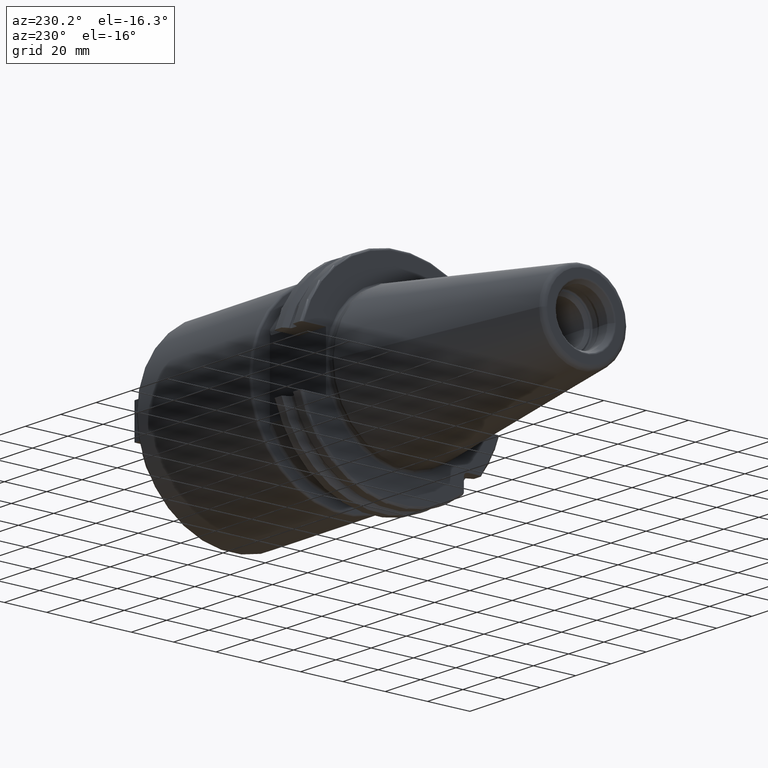
[diagram: clean part render]
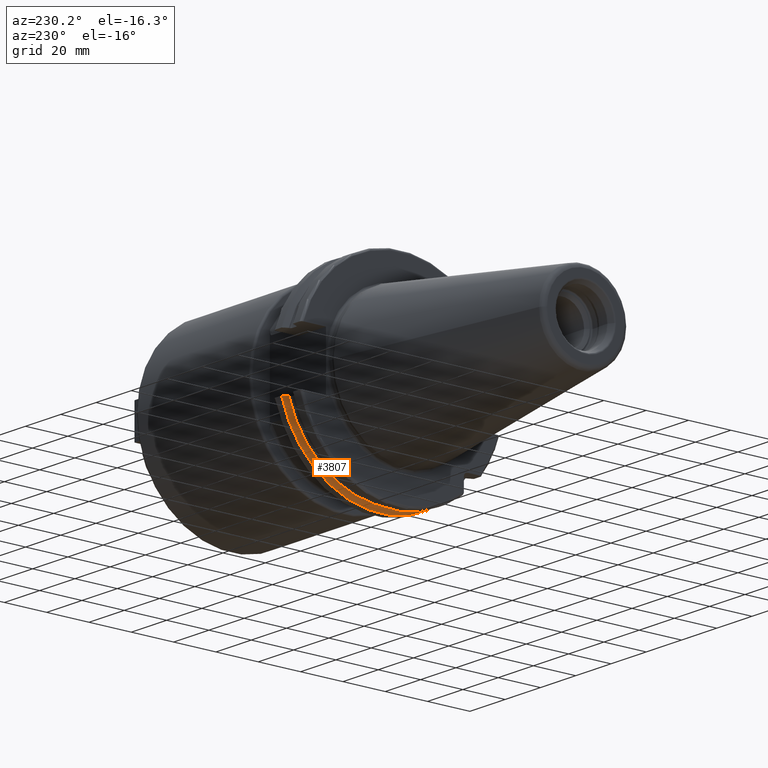
[diagram: same view with one face highlighted and labeled with its STEP entity id]
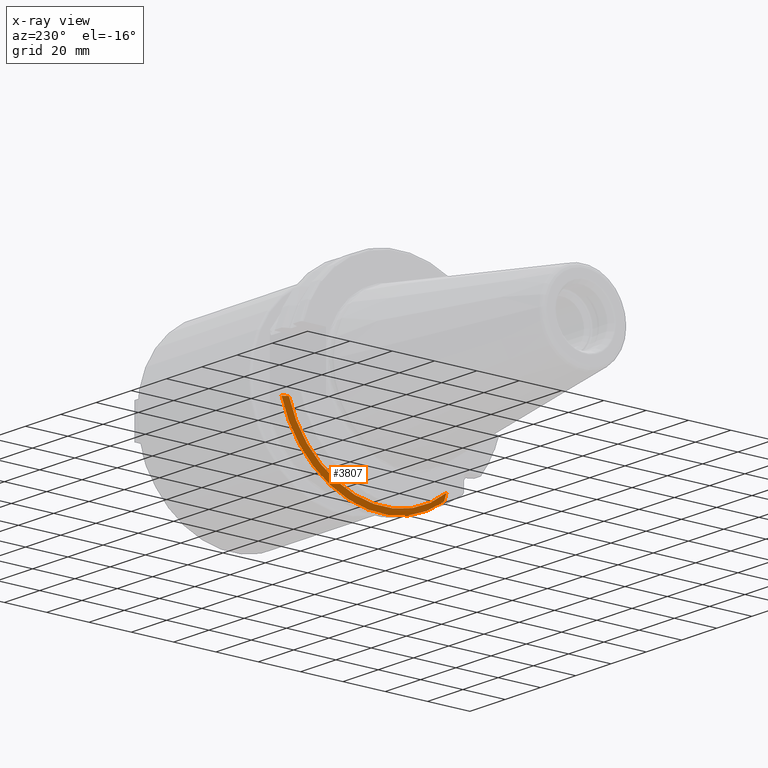
[diagram: x-ray of the same camera — body ghosted, the highlighted face saturated]
A machine part, auxiliary view. The second image highlights one B-rep face of the part: STEP entity #3807.
The next image is the same camera in x-ray: the body ghosted, the highlighted face saturated — about 0% of this face is hidden behind the body in this view.
In plain terms, the highlighted conical surface has half-angle 60 deg.
Its self-contained STEP definition (entity closure, byte-faithful):
#968=CARTESIAN_POINT('',(1.441537838583E1,0.E0,0.E0));
#969=DIRECTION('',(1.E0,0.E0,0.E0));
#970=DIRECTION('',(0.E0,-6.124647345473E-1,-7.904979120376E-1));
#971=AXIS2_PLACEMENT_3D('',#968,#969,#970);
#1495=CARTESIAN_POINT('',(1.30875E1,4.460981716077E1,-1.29E1));
#1496=CARTESIAN_POINT('',(1.323171622645E1,4.486984125009E1,-1.29E1));
#1497=CARTESIAN_POINT('',(1.352236645045E1,4.539353719098E1,-1.29E1));
#1498=CARTESIAN_POINT('',(1.396495664446E1,4.618996220278E1,-1.29E1));
#1499=CARTESIAN_POINT('',(1.426449561388E1,4.672829507383E1,-1.29E1));
#1500=CARTESIAN_POINT('',(1.441537838583E1,4.699929686974E1,-1.29E1));
#1502=CARTESIAN_POINT('',(1.30875E1,0.E0,0.E0));
#1503=DIRECTION('',(-1.E0,0.E0,0.E0));
#1504=DIRECTION('',(0.E0,9.606411165078E-1,-2.777924499957E-1));
#1505=AXIS2_PLACEMENT_3D('',#1502,#1503,#1504);
#1507=CARTESIAN_POINT('',(1.30875E1,-2.985E1,-3.557278857662E1));
#1508=CARTESIAN_POINT('',(1.322720354061E1,-2.985E1,-3.588866659244E1));
#1509=CARTESIAN_POINT('',(1.351179500938E1,-2.985E1,-3.652866450573E1));
#1510=CARTESIAN_POINT('',(1.395393296765E1,-2.985E1,-3.751242476101E1));
#1511=CARTESIAN_POINT('',(1.425975326859E1,-2.985E1,-3.818590359837E1));
#1512=CARTESIAN_POINT('',(1.441537838583E1,-2.985E1,-3.852689198793E1));
#1853=CARTESIAN_POINT('',(1.30875E1,4.460981716077E1,-1.29E1));
#1855=VERTEX_POINT('',#1853);
#1873=VERTEX_POINT('',#1500);
#1928=CARTESIAN_POINT('',(1.30875E1,-2.985E1,-3.557278857662E1));
#1929=VERTEX_POINT('',#1928);
#1957=VERTEX_POINT('',#1512);
#3796=CARTESIAN_POINT('',(1.375143919291E1,0.E0,0.E0));
#3797=DIRECTION('',(1.E0,0.E0,0.E0));
#3798=DIRECTION('',(0.E0,-1.E0,0.E0));
#3799=AXIS2_PLACEMENT_3D('',#3796,#3797,#3798);
#3800=CONICAL_SURFACE('',#3799,4.758752358474E1,6.E1);
#3801=ORIENTED_EDGE('',*,*,#3235,.F.);
#3802=ORIENTED_EDGE('',*,*,#3663,.T.);
#3803=ORIENTED_EDGE('',*,*,#3330,.T.);
#3804=ORIENTED_EDGE('',*,*,#3373,.T.);
#3805=EDGE_LOOP('',(#3801,#3802,#3803,#3804));
#3806=FACE_OUTER_BOUND('',#3805,.F.);
#3807=ADVANCED_FACE('',(#3806),#3800,.T.);
#972=CIRCLE('',#971,4.87375E1);
#1501=B_SPLINE_CURVE_WITH_KNOTS('',3,(#1495,#1496,#1497,#1498,#1499,#1500),
.UNSPECIFIED.,.F.,.F.,(4,1,1,4),(0.E0,3.333333333333E-1,6.666666666667E-1,1.E0),
.UNSPECIFIED.);
#1506=CIRCLE('',#1505,4.643754716948E1);
#1513=B_SPLINE_CURVE_WITH_KNOTS('',3,(#1507,#1508,#1509,#1510,#1511,#1512),
.UNSPECIFIED.,.F.,.F.,(4,1,1,4),(0.E0,3.333333333333E-1,6.666666666667E-1,1.E0),
.UNSPECIFIED.);
#3235=EDGE_CURVE('',#1855,#1873,#1501,.T.);
#3330=EDGE_CURVE('',#1929,#1957,#1513,.T.);
#3373=EDGE_CURVE('',#1957,#1873,#972,.T.);
#3663=EDGE_CURVE('',#1855,#1929,#1506,.T.);